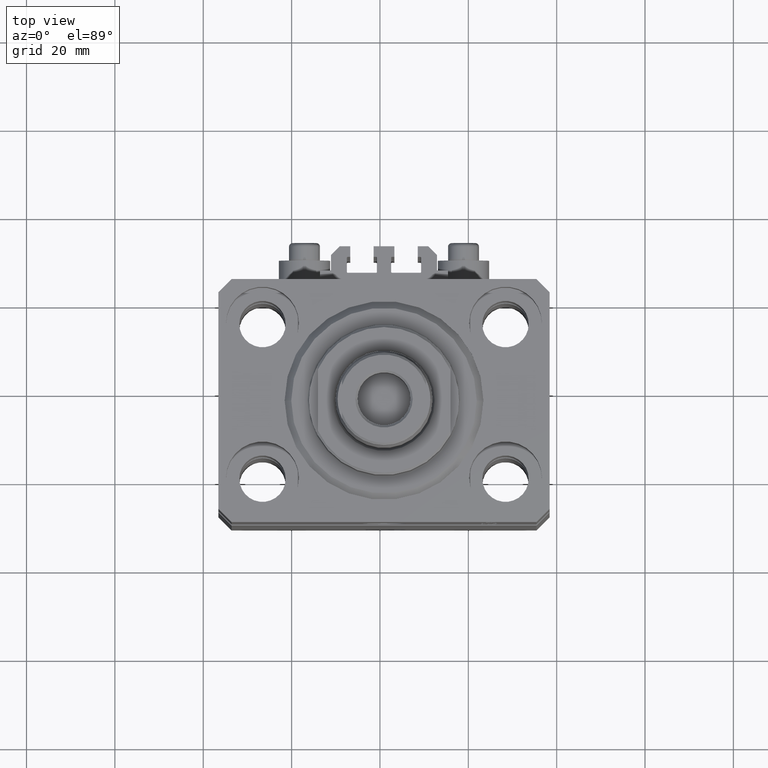
[diagram: clean part render]
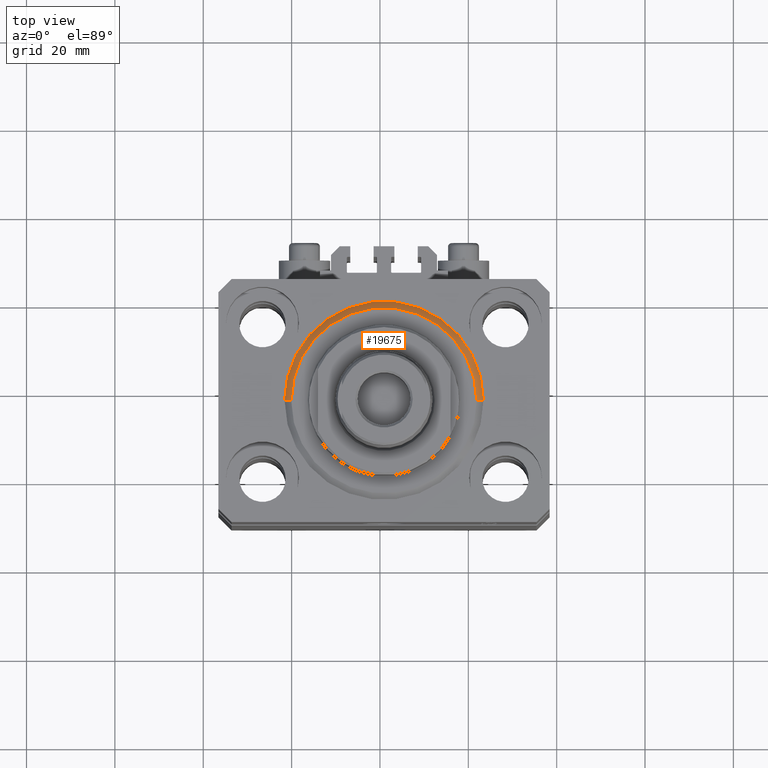
[diagram: same view with one face highlighted and labeled with its STEP entity id]
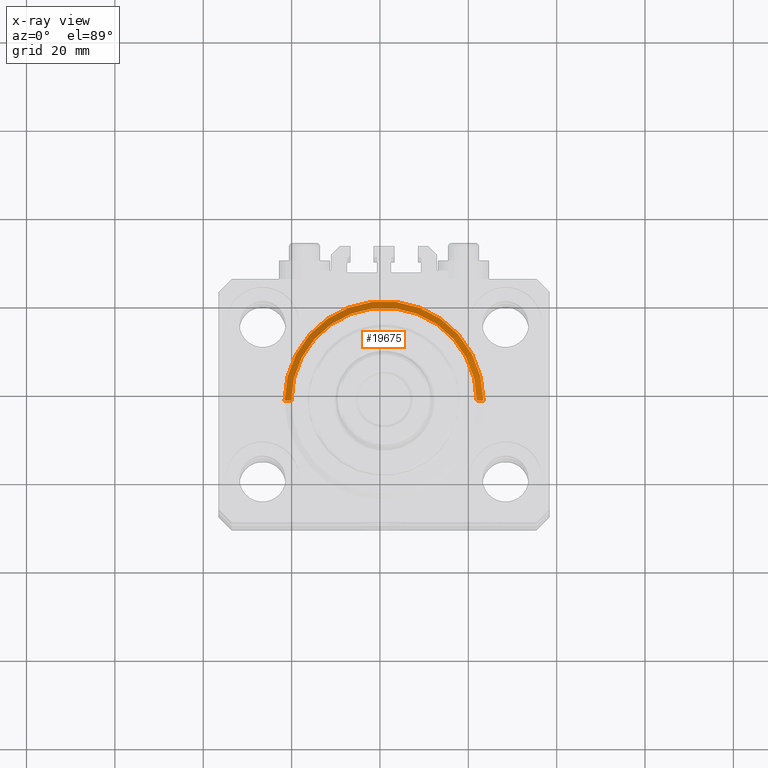
[diagram: x-ray of the same camera — body ghosted, the highlighted face saturated]
A machine part, top view. The second image highlights one B-rep face of the part: STEP entity #19675.
The next image is the same camera in x-ray: the body ghosted, the highlighted face saturated — about 0% of this face is hidden behind the body in this view.
In plain terms, the highlighted conical surface has half-angle 45 deg.
Its self-contained STEP definition (entity closure, byte-faithful):
#1663 = CIRCLE ( 'NONE', #28155, 20.99999999999998934 ) ;
#2276 = DIRECTION ( 'NONE',  ( 1.000000000000000000, 0.000000000000000000, 0.000000000000000000 ) ) ;
#3124 = CARTESIAN_POINT ( 'NONE',  ( 22.50000000000000355, 0.000000000000000000, 1.500000000000004885 ) ) ;
#3715 = EDGE_CURVE ( 'NONE', #38367, #25687, #13568, .T. ) ;
#4517 = EDGE_CURVE ( 'NONE', #38367, #14223, #1663, .T. ) ;
#5868 = DIRECTION ( 'NONE',  ( 1.000000000000000000, 0.000000000000000000, 0.000000000000000000 ) ) ;
#6185 = CARTESIAN_POINT ( 'NONE',  ( 20.99999999999998934, 0.000000000000000000, 0.000000000000000000 ) ) ;
#7915 = VECTOR ( 'NONE', #32019, 1000.000000000000000 ) ;
#8651 = EDGE_CURVE ( 'NONE', #14243, #25687, #38892, .T. ) ;
#9085 = EDGE_CURVE ( 'NONE', #14223, #14243, #36045, .T. ) ;
#9176 = CARTESIAN_POINT ( 'NONE',  ( -20.99999999999998934, 2.663606788145492628E-15, 0.000000000000000000 ) ) ;
#12736 = DIRECTION ( 'NONE',  ( -0.000000000000000000, -0.000000000000000000, 1.000000000000000000 ) ) ;
#13426 = CONICAL_SURFACE ( 'NONE', #14196, 22.50000000000000355, 0.7853981633974506105 ) ;
#13568 = LINE ( 'NONE', #28038, #27415 ) ;
#14196 = AXIS2_PLACEMENT_3D ( 'NONE', #37836, #12736, #5868 ) ;
#14223 = VERTEX_POINT ( 'NONE', #6185 ) ;
#14243 = VERTEX_POINT ( 'NONE', #24894 ) ;
#17189 = CARTESIAN_POINT ( 'NONE',  ( 0.000000000000000000, 0.000000000000000000, 0.000000000000000000 ) ) ;
#19675 = ADVANCED_FACE ( 'NONE', ( #41605 ), #13426, .T. ) ;
#19906 = ORIENTED_EDGE ( 'NONE', *, *, #9085, .F. ) ;
#19997 = ORIENTED_EDGE ( 'NONE', *, *, #3715, .T. ) ;
#20397 = ORIENTED_EDGE ( 'NONE', *, *, #8651, .F. ) ;
#21578 = ORIENTED_EDGE ( 'NONE', *, *, #4517, .F. ) ;
#24602 = DIRECTION ( 'NONE',  ( -0.000000000000000000, -0.000000000000000000, 1.000000000000000000 ) ) ;
#24894 = CARTESIAN_POINT ( 'NONE',  ( 22.50000000000000355, 2.755455298081545172E-15, 1.500000000000004885 ) ) ;
#25687 = VERTEX_POINT ( 'NONE', #39043 ) ;
#27415 = VECTOR ( 'NONE', #45994, 1000.000000000000000 ) ;
#28038 = CARTESIAN_POINT ( 'NONE',  ( -22.50000000000000355, 2.755455298081545172E-15, 1.500000000000004885 ) ) ;
#28155 = AXIS2_PLACEMENT_3D ( 'NONE', #17189, #30945, #2276 ) ;
#28736 = EDGE_LOOP ( 'NONE', ( #21578, #19997, #20397, #19906 ) ) ;
#30580 = AXIS2_PLACEMENT_3D ( 'NONE', #45181, #24602, #34303 ) ;
#30945 = DIRECTION ( 'NONE',  ( -0.000000000000000000, -0.000000000000000000, -1.000000000000000000 ) ) ;
#32019 = DIRECTION ( 'NONE',  ( 0.7071067811865491270, 0.000000000000000000, 0.7071067811865459074 ) ) ;
#34303 = DIRECTION ( 'NONE',  ( 1.000000000000000000, 0.000000000000000000, 0.000000000000000000 ) ) ;
#36045 = LINE ( 'NONE', #3124, #7915 ) ;
#37836 = CARTESIAN_POINT ( 'NONE',  ( 0.000000000000000000, 0.000000000000000000, 1.500000000000004885 ) ) ;
#38367 = VERTEX_POINT ( 'NONE', #9176 ) ;
#38892 = CIRCLE ( 'NONE', #30580, 22.50000000000000355 ) ;
#39043 = CARTESIAN_POINT ( 'NONE',  ( -22.50000000000000355, 0.000000000000000000, 1.500000000000004885 ) ) ;
#41605 = FACE_OUTER_BOUND ( 'NONE', #28736, .T. ) ;
#45181 = CARTESIAN_POINT ( 'NONE',  ( 0.000000000000000000, 0.000000000000000000, 1.500000000000004885 ) ) ;
#45994 = DIRECTION ( 'NONE',  ( -0.7071067811865491270, 8.659560562354953812E-17, 0.7071067811865459074 ) ) ;